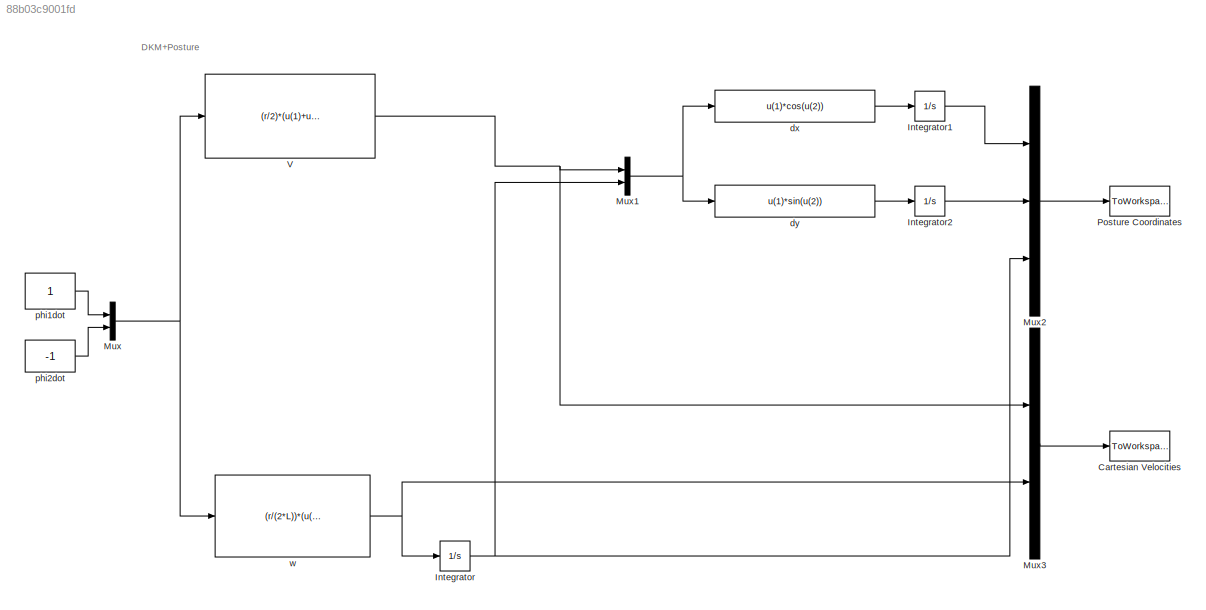
MODEL slx_88b03c9001fd
KIND model
CONFIG AbsTol = auto
CONFIG FixedStep = auto
CONFIG MaxStep = auto
CONFIG MinStep = auto
CONFIG RelTol = 1e-3
CONFIG SampleTimeConstraint = Unconstrained
CONFIG Solver = ode45
CONFIG SolverMode = Auto
CONFIG SolverName = ode45
CONFIG StartTime = 0.0
CONFIG StopTime = 10.0
BLOCK [ToWorkspace] Cartesian Velocities
  FixptAsFi = on
  MaxDataPoints = inf
  Ports = [1]
  SampleTime = -1
  Save2DSignal = 3-D array (concatenate along third dimension)
  VariableName = Velocities
BLOCK [Integrator] Integrator
  InitialCondition = pi
  Ports = [1, 1]
BLOCK [Integrator] Integrator1
  InitialCondition = 2.45
  Ports = [1, 1]
BLOCK [Integrator] Integrator2
  Ports = [1, 1]
BLOCK [Mux] Mux
  DisplayOption = bar
  Inputs = 2
  Ports = [2, 1]
BLOCK [Mux] Mux1
  DisplayOption = bar
  Inputs = 2
  Ports = [2, 1]
BLOCK [Mux] Mux2
  DisplayOption = bar
  Inputs = 3
  Ports = [3, 1]
BLOCK [Mux] Mux3
  DisplayOption = bar
  Inputs = 2
  Ports = [2, 1]
BLOCK [ToWorkspace] Posture Coordinates
  FixptAsFi = on
  MaxDataPoints = inf
  Ports = [1]
  SampleTime = -1
  Save2DSignal = 3-D array (concatenate along third dimension)
  VariableName = Posture
BLOCK [Fcn] V
  Expr = (r/2)*(u(1)+u(2))
BLOCK [Fcn] dx
  Expr = u(1)*cos(u(2))
BLOCK [Fcn] dy
  Expr = u(1)*sin(u(2))
BLOCK [Constant] phi1dot
BLOCK [Constant] phi2dot
  Value = -1
BLOCK [Fcn] w
  Expr = (r/(2*L))*(u(1)-u(2))
ANNOTATION (root): DKM+Posture
LINE Integrator1:1 -> Mux2:1
LINE Integrator2:1 -> Mux2:2
NET Integrator:1 -> Mux1:2, Mux2:3
NET Mux1:1 -> dx:1, dy:1
LINE Mux2:1 -> Posture Coordinates:1
LINE Mux3:1 -> Cartesian Velocities:1
NET Mux:1 -> V:1, w:1
NET V:1 -> Mux1:1, Mux3:1
LINE dx:1 -> Integrator1:1
LINE dy:1 -> Integrator2:1
LINE phi1dot:1 -> Mux:1
LINE phi2dot:1 -> Mux:2
NET w:1 -> Integrator:1, Mux3:2
note: NET lines group one-source signal fan-out (src -> all destinations, sorted); 1:1 wires keep LINE
